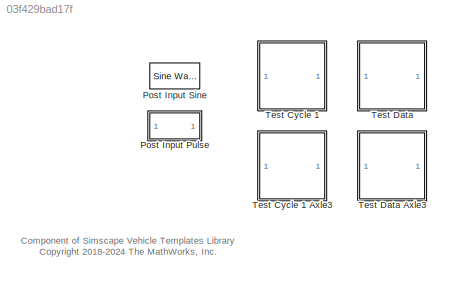
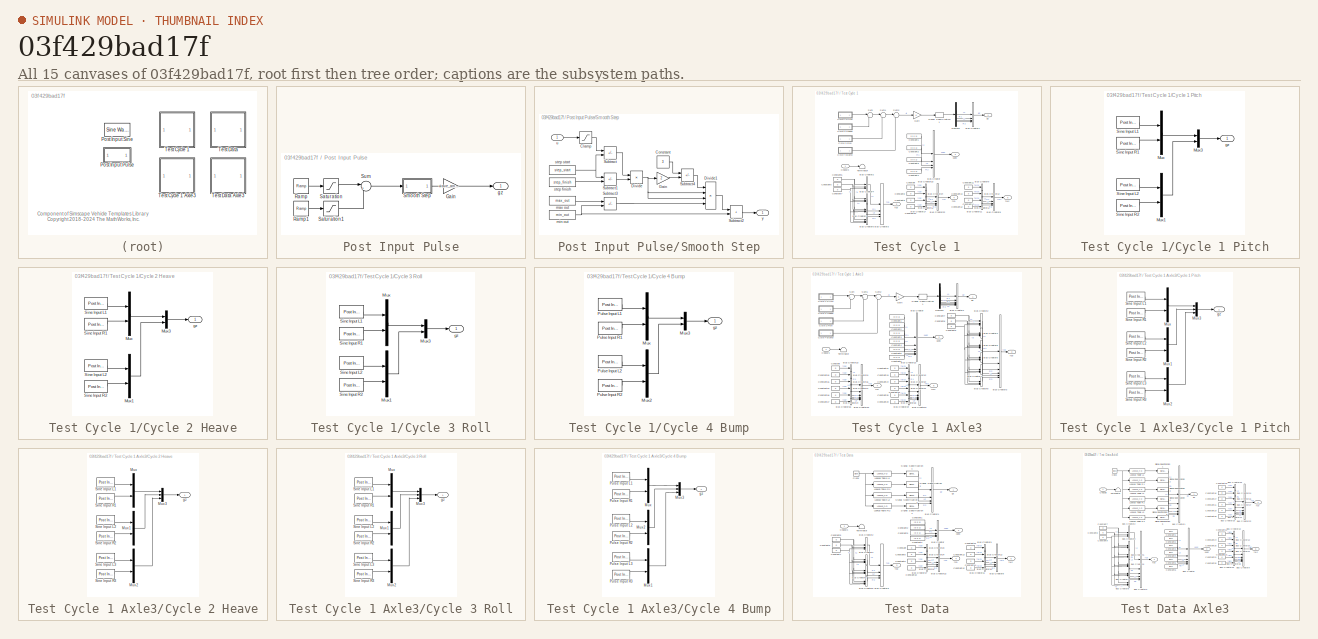
[diagram: thumbnail index - all 15 canvases of the model, root first then tree order]
MODEL slx_03f429bad17f
KIND library
CONFIG AbsTol = auto
CONFIG EnableMultiTasking = off
CONFIG FixedStep = auto
CONFIG MaxStep = auto
CONFIG MinStep = auto
CONFIG RelTol = 1e-3
CONFIG SampleTimeConstraint = Unconstrained
CONFIG SolverName = VariableStepAuto
CONFIG StartTime = 0.0
CONFIG StopTime = 10.0
BLOCK [SubSystem] Post Input Pulse
BLOCK [Gain] Post Input Pulse/Gain
  Gain = wave_amplitude
BLOCK [Reference] Post Input Pulse/Ramp  REF=simulink/Sources/Ramp
  SourceBlock = simulink/Sources/Ramp
  SourceType = Ramp
BLOCK [Reference] Post Input Pulse/Ramp1  REF=simulink/Sources/Ramp
  SourceBlock = simulink/Sources/Ramp
  SourceType = Ramp
BLOCK [Saturate] Post Input Pulse/Saturation
  LowerLimit = 0
  UpperLimit = 1
BLOCK [Saturate] Post Input Pulse/Saturation1
  LowerLimit = -1
  UpperLimit = 0
BLOCK [SubSystem] Post Input Pulse/Smooth Step
BLOCK [Saturate] Post Input Pulse/Smooth Step/Clamp
  LowerLimit = step_start
  NameLocation = top
  UpperLimit = step_finish
BLOCK [Constant] Post Input Pulse/Smooth Step/Constant
  NameLocation = top
  Value = 3
BLOCK [Product] Post Input Pulse/Smooth Step/Divide
  Inputs = */
BLOCK [Product] Post Input Pulse/Smooth Step/Divide1
  Inputs = ****
  NameLocation = top
BLOCK [Gain] Post Input Pulse/Smooth Step/Gain
  Gain = 2
BLOCK [Sum] Post Input Pulse/Smooth Step/Subtract
  IconShape = rectangular
  Inputs = +-
BLOCK [Sum] Post Input Pulse/Smooth Step/Subtract1
  IconShape = rectangular
  Inputs = -+
BLOCK [Sum] Post Input Pulse/Smooth Step/Subtract2
  IconShape = rectangular
BLOCK [Sum] Post Input Pulse/Smooth Step/Subtract3
  IconShape = rectangular
  Inputs = +-
BLOCK [Sum] Post Input Pulse/Smooth Step/Subtract4
  IconShape = rectangular
  Inputs = +-
BLOCK [Constant] Post Input Pulse/Smooth Step/max out
  Value = max_out
BLOCK [Constant] Post Input Pulse/Smooth Step/min out
  Value = min_out
BLOCK [Constant] Post Input Pulse/Smooth Step/step finish
  Value = step_finish
BLOCK [Constant] Post Input Pulse/Smooth Step/step start
  Value = step_start
BLOCK [Inport] Post Input Pulse/Smooth Step/u
  NameLocation = top
BLOCK [Outport] Post Input Pulse/Smooth Step/y
  VectorParamsAs1DForOutWhenUnconnected = off
BLOCK [Sum] Post Input Pulse/Sum
  Inputs = |++
BLOCK [Outport] Post Input Pulse/gz
  VectorParamsAs1DForOutWhenUnconnected = off
BLOCK [Reference] Post Input Sine  REF=dspsrcs4/Sine Wave
  SourceBlock = dspsrcs4/Sine Wave
  SourceType = Sine Wave
BLOCK [SubSystem] Test Cycle 1
  VariantControl = Test_Cycle_1
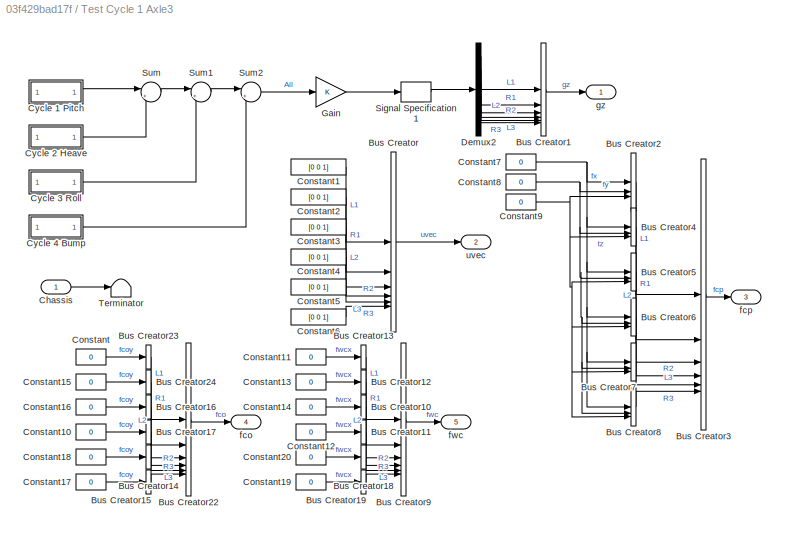
BLOCK [SubSystem] Test Cycle 1 Axle3
BLOCK [BusCreator] Test Cycle 1 Axle3/Bus Creator
  DisplayOption = bar
  InheritFromInputs = on
  Inputs = 6
BLOCK [BusCreator] Test Cycle 1 Axle3/Bus Creator1
  DisplayOption = bar
  InheritFromInputs = on
  Inputs = 6
BLOCK [BusCreator] Test Cycle 1 Axle3/Bus Creator10
  DisplayOption = bar
  InheritFromInputs = on
  Inputs = 1
BLOCK [BusCreator] Test Cycle 1 Axle3/Bus Creator11
  DisplayOption = bar
  InheritFromInputs = on
  Inputs = 1
BLOCK [BusCreator] Test Cycle 1 Axle3/Bus Creator12
  DisplayOption = bar
  InheritFromInputs = on
  Inputs = 1
BLOCK [BusCreator] Test Cycle 1 Axle3/Bus Creator13
  DisplayOption = bar
  InheritFromInputs = on
  Inputs = 1
BLOCK [BusCreator] Test Cycle 1 Axle3/Bus Creator14
  DisplayOption = bar
  InheritFromInputs = on
  Inputs = 1
BLOCK [BusCreator] Test Cycle 1 Axle3/Bus Creator15
  DisplayOption = bar
  InheritFromInputs = on
  Inputs = 1
BLOCK [BusCreator] Test Cycle 1 Axle3/Bus Creator16
  DisplayOption = bar
  InheritFromInputs = on
  Inputs = 1
BLOCK [BusCreator] Test Cycle 1 Axle3/Bus Creator17
  DisplayOption = bar
  InheritFromInputs = on
  Inputs = 1
BLOCK [BusCreator] Test Cycle 1 Axle3/Bus Creator18
  DisplayOption = bar
  InheritFromInputs = on
  Inputs = 1
BLOCK [BusCreator] Test Cycle 1 Axle3/Bus Creator19
  DisplayOption = bar
  InheritFromInputs = on
  Inputs = 1
BLOCK [BusCreator] Test Cycle 1 Axle3/Bus Creator2
  DisplayOption = bar
  InheritFromInputs = on
  Inputs = 3
BLOCK [BusCreator] Test Cycle 1 Axle3/Bus Creator22
  DisplayOption = bar
  InheritFromInputs = on
  Inputs = 6
BLOCK [BusCreator] Test Cycle 1 Axle3/Bus Creator23
  DisplayOption = bar
  InheritFromInputs = on
  Inputs = 1
BLOCK [BusCreator] Test Cycle 1 Axle3/Bus Creator24
  DisplayOption = bar
  InheritFromInputs = on
  Inputs = 1
BLOCK [BusCreator] Test Cycle 1 Axle3/Bus Creator3
  DisplayOption = bar
  InheritFromInputs = on
  Inputs = 6
BLOCK [BusCreator] Test Cycle 1 Axle3/Bus Creator4
  DisplayOption = bar
  InheritFromInputs = on
  Inputs = 3
BLOCK [BusCreator] Test Cycle 1 Axle3/Bus Creator5
  DisplayOption = bar
  InheritFromInputs = on
  Inputs = 3
BLOCK [BusCreator] Test Cycle 1 Axle3/Bus Creator6
  DisplayOption = bar
  InheritFromInputs = on
  Inputs = 3
BLOCK [BusCreator] Test Cycle 1 Axle3/Bus Creator7
  DisplayOption = bar
  InheritFromInputs = on
  Inputs = 3
BLOCK [BusCreator] Test Cycle 1 Axle3/Bus Creator8
  DisplayOption = bar
  InheritFromInputs = on
  Inputs = 3
BLOCK [BusCreator] Test Cycle 1 Axle3/Bus Creator9
  DisplayOption = bar
  InheritFromInputs = on
  Inputs = 6
BLOCK [Inport] Test Cycle 1 Axle3/Chassis
BLOCK [Constant] Test Cycle 1 Axle3/Constant
  Value = 0
BLOCK [Constant] Test Cycle 1 Axle3/Constant1
  Value = [0 0 1]
BLOCK [Constant] Test Cycle 1 Axle3/Constant10
  Value = 0
BLOCK [Constant] Test Cycle 1 Axle3/Constant11
  Value = 0
BLOCK [Constant] Test Cycle 1 Axle3/Constant12
  Value = 0
BLOCK [Constant] Test Cycle 1 Axle3/Constant13
  Value = 0
BLOCK [Constant] Test Cycle 1 Axle3/Constant14
  Value = 0
BLOCK [Constant] Test Cycle 1 Axle3/Constant15
  Value = 0
BLOCK [Constant] Test Cycle 1 Axle3/Constant16
  Value = 0
BLOCK [Constant] Test Cycle 1 Axle3/Constant17
  Value = 0
BLOCK [Constant] Test Cycle 1 Axle3/Constant18
  Value = 0
BLOCK [Constant] Test Cycle 1 Axle3/Constant19
  Value = 0
BLOCK [Constant] Test Cycle 1 Axle3/Constant2
  Value = [0 0 1]
BLOCK [Constant] Test Cycle 1 Axle3/Constant20
  Value = 0
BLOCK [Constant] Test Cycle 1 Axle3/Constant3
  Value = [0 0 1]
BLOCK [Constant] Test Cycle 1 Axle3/Constant4
  Value = [0 0 1]
BLOCK [Constant] Test Cycle 1 Axle3/Constant5
  Value = [0 0 1]
BLOCK [Constant] Test Cycle 1 Axle3/Constant6
  Value = [0 0 1]
BLOCK [Constant] Test Cycle 1 Axle3/Constant7
  Value = 0
BLOCK [Constant] Test Cycle 1 Axle3/Constant8
  Value = 0
BLOCK [Constant] Test Cycle 1 Axle3/Constant9
  Value = 0
BLOCK [SubSystem] Test Cycle 1 Axle3/Cycle 1 Pitch
BLOCK [Mux] Test Cycle 1 Axle3/Cycle 1 Pitch/Mux
  DisplayOption = bar
  Inputs = 2
BLOCK [Mux] Test Cycle 1 Axle3/Cycle 1 Pitch/Mux1
  DisplayOption = bar
  Inputs = 2
BLOCK [Mux] Test Cycle 1 Axle3/Cycle 1 Pitch/Mux2
  DisplayOption = bar
  Inputs = 2
BLOCK [Mux] Test Cycle 1 Axle3/Cycle 1 Pitch/Mux3
  DisplayOption = bar
  Inputs = 3
BLOCK [Reference] Test Cycle 1 Axle3/Cycle 1 Pitch/Sine Input L1  REF=$bdroot/Post Input Sine
  SourceBlock = $bdroot/Post Input Sine
  SourceType = Sine Wave
BLOCK [Reference] Test Cycle 1 Axle3/Cycle 1 Pitch/Sine Input L2  REF=$bdroot/Post Input Sine
  SourceBlock = $bdroot/Post Input Sine
  SourceType = Sine Wave
BLOCK [Reference] Test Cycle 1 Axle3/Cycle 1 Pitch/Sine Input L3  REF=$bdroot/Post Input Sine
  SourceBlock = $bdroot/Post Input Sine
  SourceType = Sine Wave
BLOCK [Reference] Test Cycle 1 Axle3/Cycle 1 Pitch/Sine Input R1  REF=$bdroot/Post Input Sine
  SourceBlock = $bdroot/Post Input Sine
  SourceType = Sine Wave
BLOCK [Reference] Test Cycle 1 Axle3/Cycle 1 Pitch/Sine Input R2  REF=$bdroot/Post Input Sine
  SourceBlock = $bdroot/Post Input Sine
  SourceType = Sine Wave
BLOCK [Reference] Test Cycle 1 Axle3/Cycle 1 Pitch/Sine Input R3  REF=$bdroot/Post Input Sine
  SourceBlock = $bdroot/Post Input Sine
  SourceType = Sine Wave
BLOCK [Outport] Test Cycle 1 Axle3/Cycle 1 Pitch/gz
  VectorParamsAs1DForOutWhenUnconnected = off
BLOCK [SubSystem] Test Cycle 1 Axle3/Cycle 2 Heave
BLOCK [Mux] Test Cycle 1 Axle3/Cycle 2 Heave/Mux
  DisplayOption = bar
  Inputs = 2
BLOCK [Mux] Test Cycle 1 Axle3/Cycle 2 Heave/Mux1
  DisplayOption = bar
  Inputs = 2
BLOCK [Mux] Test Cycle 1 Axle3/Cycle 2 Heave/Mux2
  DisplayOption = bar
  Inputs = 2
BLOCK [Mux] Test Cycle 1 Axle3/Cycle 2 Heave/Mux3
  DisplayOption = bar
  Inputs = 3
BLOCK [Reference] Test Cycle 1 Axle3/Cycle 2 Heave/Sine Input L1  REF=$bdroot/Post Input Sine
  SourceBlock = $bdroot/Post Input Sine
  SourceType = Sine Wave
BLOCK [Reference] Test Cycle 1 Axle3/Cycle 2 Heave/Sine Input L2  REF=$bdroot/Post Input Sine
  SourceBlock = $bdroot/Post Input Sine
  SourceType = Sine Wave
BLOCK [Reference] Test Cycle 1 Axle3/Cycle 2 Heave/Sine Input L3  REF=$bdroot/Post Input Sine
  SourceBlock = $bdroot/Post Input Sine
  SourceType = Sine Wave
BLOCK [Reference] Test Cycle 1 Axle3/Cycle 2 Heave/Sine Input R1  REF=$bdroot/Post Input Sine
  SourceBlock = $bdroot/Post Input Sine
  SourceType = Sine Wave
BLOCK [Reference] Test Cycle 1 Axle3/Cycle 2 Heave/Sine Input R2  REF=$bdroot/Post Input Sine
  SourceBlock = $bdroot/Post Input Sine
  SourceType = Sine Wave
BLOCK [Reference] Test Cycle 1 Axle3/Cycle 2 Heave/Sine Input R3  REF=$bdroot/Post Input Sine
  SourceBlock = $bdroot/Post Input Sine
  SourceType = Sine Wave
BLOCK [Outport] Test Cycle 1 Axle3/Cycle 2 Heave/gz
  VectorParamsAs1DForOutWhenUnconnected = off
BLOCK [SubSystem] Test Cycle 1 Axle3/Cycle 3 Roll
BLOCK [Mux] Test Cycle 1 Axle3/Cycle 3 Roll/Mux
  DisplayOption = bar
  Inputs = 2
BLOCK [Mux] Test Cycle 1 Axle3/Cycle 3 Roll/Mux1
  DisplayOption = bar
  Inputs = 2
BLOCK [Mux] Test Cycle 1 Axle3/Cycle 3 Roll/Mux2
  DisplayOption = bar
  Inputs = 2
BLOCK [Mux] Test Cycle 1 Axle3/Cycle 3 Roll/Mux3
  DisplayOption = bar
  Inputs = 3
BLOCK [Reference] Test Cycle 1 Axle3/Cycle 3 Roll/Sine Input L1  REF=$bdroot/Post Input Sine
  SourceBlock = $bdroot/Post Input Sine
  SourceType = Sine Wave
BLOCK [Reference] Test Cycle 1 Axle3/Cycle 3 Roll/Sine Input L2  REF=$bdroot/Post Input Sine
  SourceBlock = $bdroot/Post Input Sine
  SourceType = Sine Wave
BLOCK [Reference] Test Cycle 1 Axle3/Cycle 3 Roll/Sine Input L3  REF=$bdroot/Post Input Sine
  SourceBlock = $bdroot/Post Input Sine
  SourceType = Sine Wave
BLOCK [Reference] Test Cycle 1 Axle3/Cycle 3 Roll/Sine Input R1  REF=$bdroot/Post Input Sine
  SourceBlock = $bdroot/Post Input Sine
  SourceType = Sine Wave
BLOCK [Reference] Test Cycle 1 Axle3/Cycle 3 Roll/Sine Input R2  REF=$bdroot/Post Input Sine
  SourceBlock = $bdroot/Post Input Sine
  SourceType = Sine Wave
BLOCK [Reference] Test Cycle 1 Axle3/Cycle 3 Roll/Sine Input R3  REF=$bdroot/Post Input Sine
  SourceBlock = $bdroot/Post Input Sine
  SourceType = Sine Wave
BLOCK [Outport] Test Cycle 1 Axle3/Cycle 3 Roll/gz
  VectorParamsAs1DForOutWhenUnconnected = off
BLOCK [SubSystem] Test Cycle 1 Axle3/Cycle 4 Bump
BLOCK [Mux] Test Cycle 1 Axle3/Cycle 4 Bump/Mux
  DisplayOption = bar
  Inputs = 2
BLOCK [Mux] Test Cycle 1 Axle3/Cycle 4 Bump/Mux1
  DisplayOption = bar
  Inputs = 2
BLOCK [Mux] Test Cycle 1 Axle3/Cycle 4 Bump/Mux2
  DisplayOption = bar
  Inputs = 2
BLOCK [Mux] Test Cycle 1 Axle3/Cycle 4 Bump/Mux3
  DisplayOption = bar
  Inputs = 3
BLOCK [Reference] Test Cycle 1 Axle3/Cycle 4 Bump/Pulse Input L1  REF=$bdroot/Post Input Pulse
  SourceBlock = $bdroot/Post Input Pulse
  SourceType = Smooth Pulse
BLOCK [Reference] Test Cycle 1 Axle3/Cycle 4 Bump/Pulse Input L2  REF=$bdroot/Post Input Pulse
  SourceBlock = $bdroot/Post Input Pulse
  SourceType = Smooth Pulse
BLOCK [Reference] Test Cycle 1 Axle3/Cycle 4 Bump/Pulse Input L3  REF=$bdroot/Post Input Pulse
  SourceBlock = $bdroot/Post Input Pulse
  SourceType = Smooth Pulse
BLOCK [Reference] Test Cycle 1 Axle3/Cycle 4 Bump/Pulse Input R1  REF=$bdroot/Post Input Pulse
  SourceBlock = $bdroot/Post Input Pulse
  SourceType = Smooth Pulse
BLOCK [Reference] Test Cycle 1 Axle3/Cycle 4 Bump/Pulse Input R2  REF=$bdroot/Post Input Pulse
  SourceBlock = $bdroot/Post Input Pulse
  SourceType = Smooth Pulse
BLOCK [Reference] Test Cycle 1 Axle3/Cycle 4 Bump/Pulse Input R3  REF=$bdroot/Post Input Pulse
  SourceBlock = $bdroot/Post Input Pulse
  SourceType = Smooth Pulse
BLOCK [Outport] Test Cycle 1 Axle3/Cycle 4 Bump/gz
  VectorParamsAs1DForOutWhenUnconnected = off
BLOCK [Demux] Test Cycle 1 Axle3/Demux2
  Outputs = 6
BLOCK [Gain] Test Cycle 1 Axle3/Gain
BLOCK [SignalSpecification] Test Cycle 1 Axle3/Signal Specification1
  Unit = m
BLOCK [Sum] Test Cycle 1 Axle3/Sum
  Inputs = |++
BLOCK [Sum] Test Cycle 1 Axle3/Sum1
  Inputs = |++
BLOCK [Sum] Test Cycle 1 Axle3/Sum2
  Inputs = |++
BLOCK [Terminator] Test Cycle 1 Axle3/Terminator
BLOCK [Outport] Test Cycle 1 Axle3/fco
  Port = 4
  VectorParamsAs1DForOutWhenUnconnected = off
BLOCK [Outport] Test Cycle 1 Axle3/fcp
  Port = 3
  VectorParamsAs1DForOutWhenUnconnected = off
BLOCK [Outport] Test Cycle 1 Axle3/fwc
  Port = 5
  VectorParamsAs1DForOutWhenUnconnected = off
BLOCK [Outport] Test Cycle 1 Axle3/gz
  VectorParamsAs1DForOutWhenUnconnected = off
BLOCK [Outport] Test Cycle 1 Axle3/uvec
  Port = 2
  VectorParamsAs1DForOutWhenUnconnected = off
BLOCK [BusCreator] Test Cycle 1/Bus Creator
  DisplayOption = bar
  InheritFromInputs = on
  Inputs = 4
BLOCK [BusCreator] Test Cycle 1/Bus Creator1
  DisplayOption = bar
  InheritFromInputs = on
  Inputs = 4
BLOCK [BusCreator] Test Cycle 1/Bus Creator10
  DisplayOption = bar
  InheritFromInputs = on
  Inputs = 1
BLOCK [BusCreator] Test Cycle 1/Bus Creator11
  DisplayOption = bar
  InheritFromInputs = on
  Inputs = 1
BLOCK [BusCreator] Test Cycle 1/Bus Creator12
  DisplayOption = bar
  InheritFromInputs = on
  Inputs = 1
BLOCK [BusCreator] Test Cycle 1/Bus Creator16
  DisplayOption = bar
  InheritFromInputs = on
  Inputs = 1
BLOCK [BusCreator] Test Cycle 1/Bus Creator17
  DisplayOption = bar
  InheritFromInputs = on
  Inputs = 1
BLOCK [BusCreator] Test Cycle 1/Bus Creator2
  DisplayOption = bar
  InheritFromInputs = on
  Inputs = 3
BLOCK [BusCreator] Test Cycle 1/Bus Creator22
  DisplayOption = bar
  InheritFromInputs = on
  Inputs = 4
BLOCK [BusCreator] Test Cycle 1/Bus Creator23
  DisplayOption = bar
  InheritFromInputs = on
  Inputs = 1
BLOCK [BusCreator] Test Cycle 1/Bus Creator24
  DisplayOption = bar
  InheritFromInputs = on
  Inputs = 1
BLOCK [BusCreator] Test Cycle 1/Bus Creator3
  DisplayOption = bar
  InheritFromInputs = on
  Inputs = 4
BLOCK [BusCreator] Test Cycle 1/Bus Creator4
  DisplayOption = bar
  InheritFromInputs = on
  Inputs = 3
BLOCK [BusCreator] Test Cycle 1/Bus Creator5
  DisplayOption = bar
  InheritFromInputs = on
  Inputs = 3
BLOCK [BusCreator] Test Cycle 1/Bus Creator6
  DisplayOption = bar
  InheritFromInputs = on
  Inputs = 3
BLOCK [BusCreator] Test Cycle 1/Bus Creator8
  DisplayOption = bar
  InheritFromInputs = on
  Inputs = 4
BLOCK [BusCreator] Test Cycle 1/Bus Creator9
  DisplayOption = bar
  InheritFromInputs = on
  Inputs = 1
BLOCK [Inport] Test Cycle 1/Chassis
BLOCK [Constant] Test Cycle 1/Constant
  Value = 0
BLOCK [Constant] Test Cycle 1/Constant1
  Value = [0 0 1]
BLOCK [Constant] Test Cycle 1/Constant10
  Value = 0
BLOCK [Constant] Test Cycle 1/Constant11
  Value = 0
BLOCK [Constant] Test Cycle 1/Constant12
  Value = 0
BLOCK [Constant] Test Cycle 1/Constant13
  Value = 0
BLOCK [Constant] Test Cycle 1/Constant14
  Value = 0
BLOCK [Constant] Test Cycle 1/Constant2
  Value = [0 0 1]
BLOCK [Constant] Test Cycle 1/Constant3
  Value = [0 0 1]
BLOCK [Constant] Test Cycle 1/Constant4
  Value = [0 0 1]
BLOCK [Constant] Test Cycle 1/Constant5
  Value = 0
BLOCK [Constant] Test Cycle 1/Constant6
  Value = 0
BLOCK [Constant] Test Cycle 1/Constant7
  Value = 0
BLOCK [Constant] Test Cycle 1/Constant8
  Value = 0
BLOCK [Constant] Test Cycle 1/Constant9
  Value = 0
BLOCK [SubSystem] Test Cycle 1/Cycle 1 Pitch
BLOCK [Mux] Test Cycle 1/Cycle 1 Pitch/Mux
  DisplayOption = bar
  Inputs = 2
BLOCK [Mux] Test Cycle 1/Cycle 1 Pitch/Mux1
  DisplayOption = bar
  Inputs = 2
BLOCK [Mux] Test Cycle 1/Cycle 1 Pitch/Mux3
  DisplayOption = bar
  Inputs = 2
BLOCK [Reference] Test Cycle 1/Cycle 1 Pitch/Sine Input L1  REF=$bdroot/Post Input Sine
  SourceBlock = $bdroot/Post Input Sine
  SourceType = Sine Wave
BLOCK [Reference] Test Cycle 1/Cycle 1 Pitch/Sine Input L2  REF=$bdroot/Post Input Sine
  SourceBlock = $bdroot/Post Input Sine
  SourceType = Sine Wave
BLOCK [Reference] Test Cycle 1/Cycle 1 Pitch/Sine Input R1  REF=$bdroot/Post Input Sine
  SourceBlock = $bdroot/Post Input Sine
  SourceType = Sine Wave
BLOCK [Reference] Test Cycle 1/Cycle 1 Pitch/Sine Input R2  REF=$bdroot/Post Input Sine
  SourceBlock = $bdroot/Post Input Sine
  SourceType = Sine Wave
BLOCK [Outport] Test Cycle 1/Cycle 1 Pitch/gz
  VectorParamsAs1DForOutWhenUnconnected = off
BLOCK [SubSystem] Test Cycle 1/Cycle 2 Heave
BLOCK [Mux] Test Cycle 1/Cycle 2 Heave/Mux
  DisplayOption = bar
  Inputs = 2
BLOCK [Mux] Test Cycle 1/Cycle 2 Heave/Mux1
  DisplayOption = bar
  Inputs = 2
BLOCK [Mux] Test Cycle 1/Cycle 2 Heave/Mux3
  DisplayOption = bar
  Inputs = 2
BLOCK [Reference] Test Cycle 1/Cycle 2 Heave/Sine Input L1  REF=$bdroot/Post Input Sine
  SourceBlock = $bdroot/Post Input Sine
  SourceType = Sine Wave
BLOCK [Reference] Test Cycle 1/Cycle 2 Heave/Sine Input L2  REF=$bdroot/Post Input Sine
  SourceBlock = $bdroot/Post Input Sine
  SourceType = Sine Wave
BLOCK [Reference] Test Cycle 1/Cycle 2 Heave/Sine Input R1  REF=$bdroot/Post Input Sine
  SourceBlock = $bdroot/Post Input Sine
  SourceType = Sine Wave
BLOCK [Reference] Test Cycle 1/Cycle 2 Heave/Sine Input R2  REF=$bdroot/Post Input Sine
  SourceBlock = $bdroot/Post Input Sine
  SourceType = Sine Wave
BLOCK [Outport] Test Cycle 1/Cycle 2 Heave/gz
  VectorParamsAs1DForOutWhenUnconnected = off
BLOCK [SubSystem] Test Cycle 1/Cycle 3 Roll
BLOCK [Mux] Test Cycle 1/Cycle 3 Roll/Mux
  DisplayOption = bar
  Inputs = 2
BLOCK [Mux] Test Cycle 1/Cycle 3 Roll/Mux1
  DisplayOption = bar
  Inputs = 2
BLOCK [Mux] Test Cycle 1/Cycle 3 Roll/Mux3
  DisplayOption = bar
  Inputs = 2
BLOCK [Reference] Test Cycle 1/Cycle 3 Roll/Sine Input L1  REF=$bdroot/Post Input Sine
  SourceBlock = $bdroot/Post Input Sine
  SourceType = Sine Wave
BLOCK [Reference] Test Cycle 1/Cycle 3 Roll/Sine Input L2  REF=$bdroot/Post Input Sine
  SourceBlock = $bdroot/Post Input Sine
  SourceType = Sine Wave
BLOCK [Reference] Test Cycle 1/Cycle 3 Roll/Sine Input R1  REF=$bdroot/Post Input Sine
  SourceBlock = $bdroot/Post Input Sine
  SourceType = Sine Wave
BLOCK [Reference] Test Cycle 1/Cycle 3 Roll/Sine Input R2  REF=$bdroot/Post Input Sine
  SourceBlock = $bdroot/Post Input Sine
  SourceType = Sine Wave
BLOCK [Outport] Test Cycle 1/Cycle 3 Roll/gz
  VectorParamsAs1DForOutWhenUnconnected = off
BLOCK [SubSystem] Test Cycle 1/Cycle 4 Bump
BLOCK [Mux] Test Cycle 1/Cycle 4 Bump/Mux
  DisplayOption = bar
  Inputs = 2
BLOCK [Mux] Test Cycle 1/Cycle 4 Bump/Mux2
  DisplayOption = bar
  Inputs = 2
BLOCK [Mux] Test Cycle 1/Cycle 4 Bump/Mux3
  DisplayOption = bar
  Inputs = 2
BLOCK [Reference] Test Cycle 1/Cycle 4 Bump/Pulse Input L1  REF=$bdroot/Post Input Pulse
  SourceBlock = $bdroot/Post Input Pulse
  SourceType = Smooth Pulse
BLOCK [Reference] Test Cycle 1/Cycle 4 Bump/Pulse Input L2  REF=$bdroot/Post Input Pulse
  SourceBlock = $bdroot/Post Input Pulse
  SourceType = Smooth Pulse
BLOCK [Reference] Test Cycle 1/Cycle 4 Bump/Pulse Input R1  REF=$bdroot/Post Input Pulse
  SourceBlock = $bdroot/Post Input Pulse
  SourceType = Smooth Pulse
BLOCK [Reference] Test Cycle 1/Cycle 4 Bump/Pulse Input R2  REF=$bdroot/Post Input Pulse
  SourceBlock = $bdroot/Post Input Pulse
  SourceType = Smooth Pulse
BLOCK [Outport] Test Cycle 1/Cycle 4 Bump/gz
  VectorParamsAs1DForOutWhenUnconnected = off
BLOCK [Demux] Test Cycle 1/Demux2
BLOCK [Gain] Test Cycle 1/Gain
BLOCK [SignalSpecification] Test Cycle 1/Signal Specification1
  Unit = m
BLOCK [Sum] Test Cycle 1/Sum
  Inputs = |++
BLOCK [Sum] Test Cycle 1/Sum1
  Inputs = |++
BLOCK [Sum] Test Cycle 1/Sum2
  Inputs = |++
BLOCK [Terminator] Test Cycle 1/Terminator
BLOCK [Outport] Test Cycle 1/fco
  Port = 4
  VectorParamsAs1DForOutWhenUnconnected = off
BLOCK [Outport] Test Cycle 1/fcp
  Port = 3
  VectorParamsAs1DForOutWhenUnconnected = off
BLOCK [Outport] Test Cycle 1/fwc
  Port = 5
  VectorParamsAs1DForOutWhenUnconnected = off
BLOCK [Outport] Test Cycle 1/gz
  VectorParamsAs1DForOutWhenUnconnected = off
BLOCK [Outport] Test Cycle 1/uvec
  Port = 2
  VectorParamsAs1DForOutWhenUnconnected = off
BLOCK [SubSystem] Test Data
  VariantControl = Test_Cycle_1
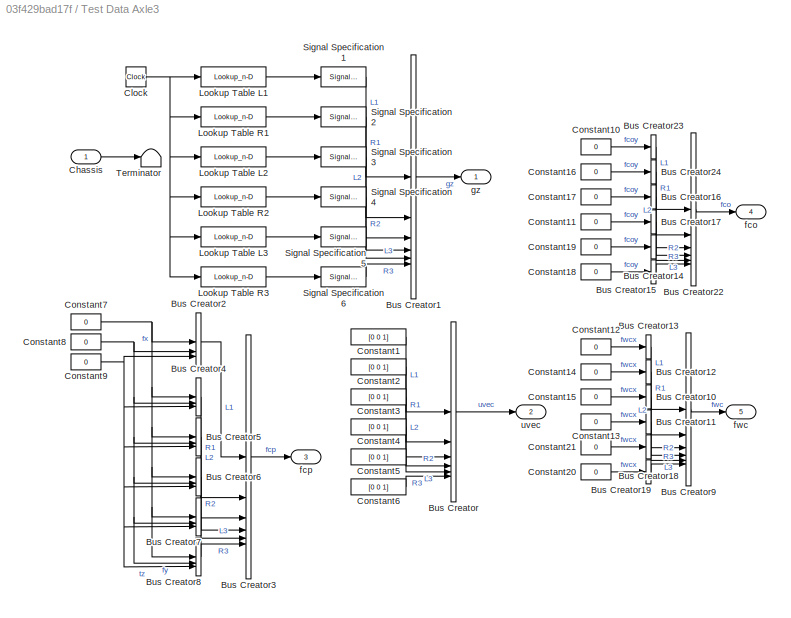
BLOCK [SubSystem] Test Data Axle3
  VariantControl = Test_Cycle_1
BLOCK [BusCreator] Test Data Axle3/Bus Creator
  DisplayOption = bar
  InheritFromInputs = on
  Inputs = 6
BLOCK [BusCreator] Test Data Axle3/Bus Creator1
  DisplayOption = bar
  InheritFromInputs = on
  Inputs = 6
BLOCK [BusCreator] Test Data Axle3/Bus Creator10
  DisplayOption = bar
  InheritFromInputs = on
  Inputs = 1
BLOCK [BusCreator] Test Data Axle3/Bus Creator11
  DisplayOption = bar
  InheritFromInputs = on
  Inputs = 1
BLOCK [BusCreator] Test Data Axle3/Bus Creator12
  DisplayOption = bar
  InheritFromInputs = on
  Inputs = 1
BLOCK [BusCreator] Test Data Axle3/Bus Creator13
  DisplayOption = bar
  InheritFromInputs = on
  Inputs = 1
BLOCK [BusCreator] Test Data Axle3/Bus Creator14
  DisplayOption = bar
  InheritFromInputs = on
  Inputs = 1
BLOCK [BusCreator] Test Data Axle3/Bus Creator15
  DisplayOption = bar
  InheritFromInputs = on
  Inputs = 1
BLOCK [BusCreator] Test Data Axle3/Bus Creator16
  DisplayOption = bar
  InheritFromInputs = on
  Inputs = 1
BLOCK [BusCreator] Test Data Axle3/Bus Creator17
  DisplayOption = bar
  InheritFromInputs = on
  Inputs = 1
BLOCK [BusCreator] Test Data Axle3/Bus Creator18
  DisplayOption = bar
  InheritFromInputs = on
  Inputs = 1
BLOCK [BusCreator] Test Data Axle3/Bus Creator19
  DisplayOption = bar
  InheritFromInputs = on
  Inputs = 1
BLOCK [BusCreator] Test Data Axle3/Bus Creator2
  DisplayOption = bar
  InheritFromInputs = on
  Inputs = 3
BLOCK [BusCreator] Test Data Axle3/Bus Creator22
  DisplayOption = bar
  InheritFromInputs = on
  Inputs = 6
BLOCK [BusCreator] Test Data Axle3/Bus Creator23
  DisplayOption = bar
  InheritFromInputs = on
  Inputs = 1
BLOCK [BusCreator] Test Data Axle3/Bus Creator24
  DisplayOption = bar
  InheritFromInputs = on
  Inputs = 1
BLOCK [BusCreator] Test Data Axle3/Bus Creator3
  DisplayOption = bar
  InheritFromInputs = on
  Inputs = 6
BLOCK [BusCreator] Test Data Axle3/Bus Creator4
  DisplayOption = bar
  InheritFromInputs = on
  Inputs = 3
BLOCK [BusCreator] Test Data Axle3/Bus Creator5
  DisplayOption = bar
  InheritFromInputs = on
  Inputs = 3
BLOCK [BusCreator] Test Data Axle3/Bus Creator6
  DisplayOption = bar
  InheritFromInputs = on
  Inputs = 3
BLOCK [BusCreator] Test Data Axle3/Bus Creator7
  DisplayOption = bar
  InheritFromInputs = on
  Inputs = 3
BLOCK [BusCreator] Test Data Axle3/Bus Creator8
  DisplayOption = bar
  InheritFromInputs = on
  Inputs = 3
BLOCK [BusCreator] Test Data Axle3/Bus Creator9
  DisplayOption = bar
  InheritFromInputs = on
  Inputs = 6
BLOCK [Inport] Test Data Axle3/Chassis
BLOCK [Clock] Test Data Axle3/Clock
BLOCK [Constant] Test Data Axle3/Constant1
  Value = [0 0 1]
BLOCK [Constant] Test Data Axle3/Constant10
  Value = 0
BLOCK [Constant] Test Data Axle3/Constant11
  Value = 0
BLOCK [Constant] Test Data Axle3/Constant12
  Value = 0
BLOCK [Constant] Test Data Axle3/Constant13
  Value = 0
BLOCK [Constant] Test Data Axle3/Constant14
  Value = 0
BLOCK [Constant] Test Data Axle3/Constant15
  Value = 0
BLOCK [Constant] Test Data Axle3/Constant16
  Value = 0
BLOCK [Constant] Test Data Axle3/Constant17
  Value = 0
BLOCK [Constant] Test Data Axle3/Constant18
  Value = 0
BLOCK [Constant] Test Data Axle3/Constant19
  Value = 0
BLOCK [Constant] Test Data Axle3/Constant2
  Value = [0 0 1]
BLOCK [Constant] Test Data Axle3/Constant20
  Value = 0
BLOCK [Constant] Test Data Axle3/Constant21
  Value = 0
BLOCK [Constant] Test Data Axle3/Constant3
  Value = [0 0 1]
BLOCK [Constant] Test Data Axle3/Constant4
  Value = [0 0 1]
BLOCK [Constant] Test Data Axle3/Constant5
  Value = [0 0 1]
BLOCK [Constant] Test Data Axle3/Constant6
  Value = [0 0 1]
BLOCK [Constant] Test Data Axle3/Constant7
  Value = 0
BLOCK [Constant] Test Data Axle3/Constant8
  Value = 0
BLOCK [Constant] Test Data Axle3/Constant9
  Value = 0
BLOCK [Lookup_n-D] Test Data Axle3/Lookup Table L1
  BreakpointsForDimension1 = brkpts_postL1
  InputPortMap = u0
  InternalRulePriority = Speed
  NumberOfTableDimensions = 1
  RndMeth = Simplest
  Table = table_postL1
BLOCK [Lookup_n-D] Test Data Axle3/Lookup Table L2
  BreakpointsForDimension1 = brkpts_postL2
  InputPortMap = u0
  InternalRulePriority = Speed
  InterpMethod = Cubic spline
  NumberOfTableDimensions = 1
  RndMeth = Simplest
  Table = table_postL2
BLOCK [Lookup_n-D] Test Data Axle3/Lookup Table L3
  BreakpointsForDimension1 = brkpts_postL3
  InputPortMap = u0
  InternalRulePriority = Speed
  InterpMethod = Cubic spline
  NumberOfTableDimensions = 1
  RndMeth = Simplest
  Table = table_postL3
BLOCK [Lookup_n-D] Test Data Axle3/Lookup Table R1
  BreakpointsForDimension1 = brkpts_postR1
  InputPortMap = u0
  InternalRulePriority = Speed
  InterpMethod = Cubic spline
  NumberOfTableDimensions = 1
  RndMeth = Simplest
  Table = table_postR1
BLOCK [Lookup_n-D] Test Data Axle3/Lookup Table R2
  BreakpointsForDimension1 = brkpts_postR2
  InputPortMap = u0
  InternalRulePriority = Speed
  InterpMethod = Cubic spline
  NumberOfTableDimensions = 1
  RndMeth = Simplest
  Table = table_postR2
BLOCK [Lookup_n-D] Test Data Axle3/Lookup Table R3
  BreakpointsForDimension1 = brkpts_postR3
  InputPortMap = u0
  InternalRulePriority = Speed
  InterpMethod = Cubic spline
  NumberOfTableDimensions = 1
  RndMeth = Simplest
  Table = table_postR3
BLOCK [SignalSpecification] Test Data Axle3/Signal Specification1
  Unit = m
BLOCK [SignalSpecification] Test Data Axle3/Signal Specification2
  Unit = m
BLOCK [SignalSpecification] Test Data Axle3/Signal Specification3
  Unit = m
BLOCK [SignalSpecification] Test Data Axle3/Signal Specification4
  Unit = m
BLOCK [SignalSpecification] Test Data Axle3/Signal Specification5
  Unit = m
BLOCK [SignalSpecification] Test Data Axle3/Signal Specification6
  Unit = m
BLOCK [Terminator] Test Data Axle3/Terminator
BLOCK [Outport] Test Data Axle3/fco
  Port = 4
  VectorParamsAs1DForOutWhenUnconnected = off
BLOCK [Outport] Test Data Axle3/fcp
  Port = 3
  VectorParamsAs1DForOutWhenUnconnected = off
BLOCK [Outport] Test Data Axle3/fwc
  Port = 5
  VectorParamsAs1DForOutWhenUnconnected = off
BLOCK [Outport] Test Data Axle3/gz
  VectorParamsAs1DForOutWhenUnconnected = off
BLOCK [Outport] Test Data Axle3/uvec
  Port = 2
  VectorParamsAs1DForOutWhenUnconnected = off
BLOCK [BusCreator] Test Data/Bus Creator
  DisplayOption = bar
  InheritFromInputs = on
  Inputs = 4
BLOCK [BusCreator] Test Data/Bus Creator1
  DisplayOption = bar
  InheritFromInputs = on
  Inputs = 4
BLOCK [BusCreator] Test Data/Bus Creator10
  DisplayOption = bar
  InheritFromInputs = on
  Inputs = 1
BLOCK [BusCreator] Test Data/Bus Creator11
  DisplayOption = bar
  InheritFromInputs = on
  Inputs = 1
BLOCK [BusCreator] Test Data/Bus Creator12
  DisplayOption = bar
  InheritFromInputs = on
  Inputs = 1
BLOCK [BusCreator] Test Data/Bus Creator16
  DisplayOption = bar
  InheritFromInputs = on
  Inputs = 1
BLOCK [BusCreator] Test Data/Bus Creator17
  DisplayOption = bar
  InheritFromInputs = on
  Inputs = 1
BLOCK [BusCreator] Test Data/Bus Creator2
  DisplayOption = bar
  InheritFromInputs = on
  Inputs = 3
BLOCK [BusCreator] Test Data/Bus Creator22
  DisplayOption = bar
  InheritFromInputs = on
  Inputs = 4
BLOCK [BusCreator] Test Data/Bus Creator23
  DisplayOption = bar
  InheritFromInputs = on
  Inputs = 1
BLOCK [BusCreator] Test Data/Bus Creator24
  DisplayOption = bar
  InheritFromInputs = on
  Inputs = 1
BLOCK [BusCreator] Test Data/Bus Creator3
  DisplayOption = bar
  InheritFromInputs = on
  Inputs = 4
BLOCK [BusCreator] Test Data/Bus Creator4
  DisplayOption = bar
  InheritFromInputs = on
  Inputs = 3
BLOCK [BusCreator] Test Data/Bus Creator5
  DisplayOption = bar
  InheritFromInputs = on
  Inputs = 3
BLOCK [BusCreator] Test Data/Bus Creator6
  DisplayOption = bar
  InheritFromInputs = on
  Inputs = 3
BLOCK [BusCreator] Test Data/Bus Creator8
  DisplayOption = bar
  InheritFromInputs = on
  Inputs = 4
BLOCK [BusCreator] Test Data/Bus Creator9
  DisplayOption = bar
  InheritFromInputs = on
  Inputs = 1
BLOCK [Inport] Test Data/Chassis
BLOCK [Clock] Test Data/Clock
BLOCK [Constant] Test Data/Constant
  Value = 0
BLOCK [Constant] Test Data/Constant1
  Value = [0 0 1]
BLOCK [Constant] Test Data/Constant10
  Value = 0
BLOCK [Constant] Test Data/Constant11
  Value = 0
BLOCK [Constant] Test Data/Constant12
  Value = 0
BLOCK [Constant] Test Data/Constant13
  Value = 0
BLOCK [Constant] Test Data/Constant14
  Value = 0
BLOCK [Constant] Test Data/Constant2
  Value = [0 0 1]
BLOCK [Constant] Test Data/Constant3
  Value = [0 0 1]
BLOCK [Constant] Test Data/Constant4
  Value = [0 0 1]
BLOCK [Constant] Test Data/Constant5
  Value = 0
BLOCK [Constant] Test Data/Constant6
  Value = 0
BLOCK [Constant] Test Data/Constant7
  Value = 0
BLOCK [Constant] Test Data/Constant8
  Value = 0
BLOCK [Constant] Test Data/Constant9
  Value = 0
BLOCK [Lookup_n-D] Test Data/Lookup Table L1
  BreakpointsForDimension1 = brkpts_postL1
  InputPortMap = u0
  InternalRulePriority = Speed
  NumberOfTableDimensions = 1
  RndMeth = Simplest
  Table = table_postL1
BLOCK [Lookup_n-D] Test Data/Lookup Table L2
  BreakpointsForDimension1 = brkpts_postL2
  InputPortMap = u0
  InternalRulePriority = Speed
  InterpMethod = Cubic spline
  NumberOfTableDimensions = 1
  RndMeth = Simplest
  Table = table_postL2
BLOCK [Lookup_n-D] Test Data/Lookup Table R1
  BreakpointsForDimension1 = brkpts_postR1
  InputPortMap = u0
  InternalRulePriority = Speed
  InterpMethod = Cubic spline
  NumberOfTableDimensions = 1
  RndMeth = Simplest
  Table = table_postR1
BLOCK [Lookup_n-D] Test Data/Lookup Table R2
  BreakpointsForDimension1 = brkpts_postR2
  InputPortMap = u0
  InternalRulePriority = Speed
  InterpMethod = Cubic spline
  NumberOfTableDimensions = 1
  RndMeth = Simplest
  Table = table_postR2
BLOCK [SignalSpecification] Test Data/Signal Specification1
  Unit = m
BLOCK [SignalSpecification] Test Data/Signal Specification2
  Unit = m
BLOCK [SignalSpecification] Test Data/Signal Specification3
  Unit = m
BLOCK [SignalSpecification] Test Data/Signal Specification4
  Unit = m
BLOCK [Terminator] Test Data/Terminator
BLOCK [Outport] Test Data/fco
  Port = 4
  VectorParamsAs1DForOutWhenUnconnected = off
BLOCK [Outport] Test Data/fcp
  Port = 3
  VectorParamsAs1DForOutWhenUnconnected = off
BLOCK [Outport] Test Data/fwc
  Port = 5
  VectorParamsAs1DForOutWhenUnconnected = off
BLOCK [Outport] Test Data/gz
  VectorParamsAs1DForOutWhenUnconnected = off
BLOCK [Outport] Test Data/uvec
  Port = 2
  VectorParamsAs1DForOutWhenUnconnected = off
ANNOTATION (root): Component of Simscape Vehicle Templates Library <copyright redacted>
LINE Post Input Pulse/Gain:1 -> Post Input Pulse/gz:1
LINE Post Input Pulse/Ramp1:1 -> Post Input Pulse/Saturation1:1
LINE Post Input Pulse/Ramp:1 -> Post Input Pulse/Saturation:1
LINE Post Input Pulse/Saturation1:1 -> Post Input Pulse/Sum:2
LINE Post Input Pulse/Saturation:1 -> Post Input Pulse/Sum:1
LINE Post Input Pulse/Smooth Step/Clamp:1 -> Post Input Pulse/Smooth Step/Subtract:1
LINE Post Input Pulse/Smooth Step/Constant:1 -> Post Input Pulse/Smooth Step/Subtract4:1
LINE Post Input Pulse/Smooth Step/Divide1:1 -> Post Input Pulse/Smooth Step/Subtract2:1
NET Post Input Pulse/Smooth Step/Divide:1 -> Post Input Pulse/Smooth Step/Divide1:2, Post Input Pulse/Smooth Step/Divide1:3, Post Input Pulse/Smooth Step/Gain:1
LINE Post Input Pulse/Smooth Step/Gain:1 -> Post Input Pulse/Smooth Step/Subtract4:2
LINE Post Input Pulse/Smooth Step/Subtract1:1 -> Post Input Pulse/Smooth Step/Divide:2
LINE Post Input Pulse/Smooth Step/Subtract2:1 -> Post Input Pulse/Smooth Step/y:1
LINE Post Input Pulse/Smooth Step/Subtract3:1 -> Post Input Pulse/Smooth Step/Divide1:4
LINE Post Input Pulse/Smooth Step/Subtract4:1 -> Post Input Pulse/Smooth Step/Divide1:1
LINE Post Input Pulse/Smooth Step/Subtract:1 -> Post Input Pulse/Smooth Step/Divide:1
LINE Post Input Pulse/Smooth Step/max out:1 -> Post Input Pulse/Smooth Step/Subtract3:1
NET Post Input Pulse/Smooth Step/min out:1 -> Post Input Pulse/Smooth Step/Subtract2:2, Post Input Pulse/Smooth Step/Subtract3:2
LINE Post Input Pulse/Smooth Step/step finish:1 -> Post Input Pulse/Smooth Step/Subtract1:2
NET Post Input Pulse/Smooth Step/step start:1 -> Post Input Pulse/Smooth Step/Subtract1:1, Post Input Pulse/Smooth Step/Subtract:2
LINE Post Input Pulse/Smooth Step/u:1 -> Post Input Pulse/Smooth Step/Clamp:1
LINE Post Input Pulse/Smooth Step:1 -> Post Input Pulse/Gain:1
LINE Post Input Pulse/Sum:1 -> Post Input Pulse/Smooth Step:1
LINE Test Cycle 1 Axle3/Bus Creator10:1 -> Test Cycle 1 Axle3/Bus Creator9:3
LINE Test Cycle 1 Axle3/Bus Creator11:1 -> Test Cycle 1 Axle3/Bus Creator9:4
LINE Test Cycle 1 Axle3/Bus Creator12:1 -> Test Cycle 1 Axle3/Bus Creator9:2
LINE Test Cycle 1 Axle3/Bus Creator13:1 -> Test Cycle 1 Axle3/Bus Creator9:1
LINE Test Cycle 1 Axle3/Bus Creator14:1 -> Test Cycle 1 Axle3/Bus Creator22:5
LINE Test Cycle 1 Axle3/Bus Creator15:1 -> Test Cycle 1 Axle3/Bus Creator22:6
LINE Test Cycle 1 Axle3/Bus Creator16:1 -> Test Cycle 1 Axle3/Bus Creator22:3
LINE Test Cycle 1 Axle3/Bus Creator17:1 -> Test Cycle 1 Axle3/Bus Creator22:4
LINE Test Cycle 1 Axle3/Bus Creator18:1 -> Test Cycle 1 Axle3/Bus Creator9:5
LINE Test Cycle 1 Axle3/Bus Creator19:1 -> Test Cycle 1 Axle3/Bus Creator9:6
LINE Test Cycle 1 Axle3/Bus Creator1:1 -> Test Cycle 1 Axle3/gz:1
LINE Test Cycle 1 Axle3/Bus Creator22:1 -> Test Cycle 1 Axle3/fco:1
LINE Test Cycle 1 Axle3/Bus Creator23:1 -> Test Cycle 1 Axle3/Bus Creator22:1
LINE Test Cycle 1 Axle3/Bus Creator24:1 -> Test Cycle 1 Axle3/Bus Creator22:2
LINE Test Cycle 1 Axle3/Bus Creator2:1 -> Test Cycle 1 Axle3/Bus Creator3:1
LINE Test Cycle 1 Axle3/Bus Creator3:1 -> Test Cycle 1 Axle3/fcp:1
LINE Test Cycle 1 Axle3/Bus Creator4:1 -> Test Cycle 1 Axle3/Bus Creator3:2
LINE Test Cycle 1 Axle3/Bus Creator5:1 -> Test Cycle 1 Axle3/Bus Creator3:3
LINE Test Cycle 1 Axle3/Bus Creator6:1 -> Test Cycle 1 Axle3/Bus Creator3:4
LINE Test Cycle 1 Axle3/Bus Creator7:1 -> Test Cycle 1 Axle3/Bus Creator3:5
LINE Test Cycle 1 Axle3/Bus Creator8:1 -> Test Cycle 1 Axle3/Bus Creator3:6
LINE Test Cycle 1 Axle3/Bus Creator9:1 -> Test Cycle 1 Axle3/fwc:1
LINE Test Cycle 1 Axle3/Bus Creator:1 -> Test Cycle 1 Axle3/uvec:1
LINE Test Cycle 1 Axle3/Chassis:1 -> Test Cycle 1 Axle3/Terminator:1
LINE Test Cycle 1 Axle3/Constant10:1 -> Test Cycle 1 Axle3/Bus Creator17:1
LINE Test Cycle 1 Axle3/Constant11:1 -> Test Cycle 1 Axle3/Bus Creator13:1
LINE Test Cycle 1 Axle3/Constant12:1 -> Test Cycle 1 Axle3/Bus Creator11:1
LINE Test Cycle 1 Axle3/Constant13:1 -> Test Cycle 1 Axle3/Bus Creator12:1
LINE Test Cycle 1 Axle3/Constant14:1 -> Test Cycle 1 Axle3/Bus Creator10:1
LINE Test Cycle 1 Axle3/Constant15:1 -> Test Cycle 1 Axle3/Bus Creator24:1
LINE Test Cycle 1 Axle3/Constant16:1 -> Test Cycle 1 Axle3/Bus Creator16:1
LINE Test Cycle 1 Axle3/Constant17:1 -> Test Cycle 1 Axle3/Bus Creator15:1
LINE Test Cycle 1 Axle3/Constant18:1 -> Test Cycle 1 Axle3/Bus Creator14:1
LINE Test Cycle 1 Axle3/Constant19:1 -> Test Cycle 1 Axle3/Bus Creator19:1
LINE Test Cycle 1 Axle3/Constant1:1 -> Test Cycle 1 Axle3/Bus Creator:1
LINE Test Cycle 1 Axle3/Constant20:1 -> Test Cycle 1 Axle3/Bus Creator18:1
LINE Test Cycle 1 Axle3/Constant2:1 -> Test Cycle 1 Axle3/Bus Creator:2
LINE Test Cycle 1 Axle3/Constant3:1 -> Test Cycle 1 Axle3/Bus Creator:3
LINE Test Cycle 1 Axle3/Constant4:1 -> Test Cycle 1 Axle3/Bus Creator:4
LINE Test Cycle 1 Axle3/Constant5:1 -> Test Cycle 1 Axle3/Bus Creator:5
LINE Test Cycle 1 Axle3/Constant6:1 -> Test Cycle 1 Axle3/Bus Creator:6
NET Test Cycle 1 Axle3/Constant7:1 -> Test Cycle 1 Axle3/Bus Creator2:1, Test Cycle 1 Axle3/Bus Creator4:1, Test Cycle 1 Axle3/Bus Creator5:1, Test Cycle 1 Axle3/Bus Creator6:1, Test Cycle 1 Axle3/Bus Creator7:1, Test Cycle 1 Axle3/Bus Creator8:1
NET Test Cycle 1 Axle3/Constant8:1 -> Test Cycle 1 Axle3/Bus Creator2:2, Test Cycle 1 Axle3/Bus Creator4:2, Test Cycle 1 Axle3/Bus Creator5:2, Test Cycle 1 Axle3/Bus Creator6:2, Test Cycle 1 Axle3/Bus Creator7:2, Test Cycle 1 Axle3/Bus Creator8:2
NET Test Cycle 1 Axle3/Constant9:1 -> Test Cycle 1 Axle3/Bus Creator2:3, Test Cycle 1 Axle3/Bus Creator4:3, Test Cycle 1 Axle3/Bus Creator5:3, Test Cycle 1 Axle3/Bus Creator6:3, Test Cycle 1 Axle3/Bus Creator7:3, Test Cycle 1 Axle3/Bus Creator8:3
LINE Test Cycle 1 Axle3/Constant:1 -> Test Cycle 1 Axle3/Bus Creator23:1
LINE Test Cycle 1 Axle3/Cycle 1 Pitch/Mux1:1 -> Test Cycle 1 Axle3/Cycle 1 Pitch/Mux3:2
LINE Test Cycle 1 Axle3/Cycle 1 Pitch/Mux2:1 -> Test Cycle 1 Axle3/Cycle 1 Pitch/Mux3:3
LINE Test Cycle 1 Axle3/Cycle 1 Pitch/Mux3:1 -> Test Cycle 1 Axle3/Cycle 1 Pitch/gz:1
LINE Test Cycle 1 Axle3/Cycle 1 Pitch/Mux:1 -> Test Cycle 1 Axle3/Cycle 1 Pitch/Mux3:1
LINE Test Cycle 1 Axle3/Cycle 1 Pitch/Sine Input L1:1 -> Test Cycle 1 Axle3/Cycle 1 Pitch/Mux:1
LINE Test Cycle 1 Axle3/Cycle 1 Pitch/Sine Input L2:1 -> Test Cycle 1 Axle3/Cycle 1 Pitch/Mux1:1
LINE Test Cycle 1 Axle3/Cycle 1 Pitch/Sine Input L3:1 -> Test Cycle 1 Axle3/Cycle 1 Pitch/Mux2:1
LINE Test Cycle 1 Axle3/Cycle 1 Pitch/Sine Input R1:1 -> Test Cycle 1 Axle3/Cycle 1 Pitch/Mux:2
LINE Test Cycle 1 Axle3/Cycle 1 Pitch/Sine Input R2:1 -> Test Cycle 1 Axle3/Cycle 1 Pitch/Mux1:2
LINE Test Cycle 1 Axle3/Cycle 1 Pitch/Sine Input R3:1 -> Test Cycle 1 Axle3/Cycle 1 Pitch/Mux2:2
LINE Test Cycle 1 Axle3/Cycle 1 Pitch:1 -> Test Cycle 1 Axle3/Sum:1
LINE Test Cycle 1 Axle3/Cycle 2 Heave/Mux1:1 -> Test Cycle 1 Axle3/Cycle 2 Heave/Mux3:2
LINE Test Cycle 1 Axle3/Cycle 2 Heave/Mux2:1 -> Test Cycle 1 Axle3/Cycle 2 Heave/Mux3:3
LINE Test Cycle 1 Axle3/Cycle 2 Heave/Mux3:1 -> Test Cycle 1 Axle3/Cycle 2 Heave/gz:1
LINE Test Cycle 1 Axle3/Cycle 2 Heave/Mux:1 -> Test Cycle 1 Axle3/Cycle 2 Heave/Mux3:1
LINE Test Cycle 1 Axle3/Cycle 2 Heave/Sine Input L1:1 -> Test Cycle 1 Axle3/Cycle 2 Heave/Mux:1
LINE Test Cycle 1 Axle3/Cycle 2 Heave/Sine Input L2:1 -> Test Cycle 1 Axle3/Cycle 2 Heave/Mux1:1
LINE Test Cycle 1 Axle3/Cycle 2 Heave/Sine Input L3:1 -> Test Cycle 1 Axle3/Cycle 2 Heave/Mux2:1
LINE Test Cycle 1 Axle3/Cycle 2 Heave/Sine Input R1:1 -> Test Cycle 1 Axle3/Cycle 2 Heave/Mux:2
LINE Test Cycle 1 Axle3/Cycle 2 Heave/Sine Input R2:1 -> Test Cycle 1 Axle3/Cycle 2 Heave/Mux1:2
LINE Test Cycle 1 Axle3/Cycle 2 Heave/Sine Input R3:1 -> Test Cycle 1 Axle3/Cycle 2 Heave/Mux2:2
LINE Test Cycle 1 Axle3/Cycle 2 Heave:1 -> Test Cycle 1 Axle3/Sum:2
LINE Test Cycle 1 Axle3/Cycle 3 Roll/Mux1:1 -> Test Cycle 1 Axle3/Cycle 3 Roll/Mux3:2
LINE Test Cycle 1 Axle3/Cycle 3 Roll/Mux2:1 -> Test Cycle 1 Axle3/Cycle 3 Roll/Mux3:3
LINE Test Cycle 1 Axle3/Cycle 3 Roll/Mux3:1 -> Test Cycle 1 Axle3/Cycle 3 Roll/gz:1
LINE Test Cycle 1 Axle3/Cycle 3 Roll/Mux:1 -> Test Cycle 1 Axle3/Cycle 3 Roll/Mux3:1
LINE Test Cycle 1 Axle3/Cycle 3 Roll/Sine Input L1:1 -> Test Cycle 1 Axle3/Cycle 3 Roll/Mux:1
LINE Test Cycle 1 Axle3/Cycle 3 Roll/Sine Input L2:1 -> Test Cycle 1 Axle3/Cycle 3 Roll/Mux1:1
LINE Test Cycle 1 Axle3/Cycle 3 Roll/Sine Input L3:1 -> Test Cycle 1 Axle3/Cycle 3 Roll/Mux2:1
LINE Test Cycle 1 Axle3/Cycle 3 Roll/Sine Input R1:1 -> Test Cycle 1 Axle3/Cycle 3 Roll/Mux:2
LINE Test Cycle 1 Axle3/Cycle 3 Roll/Sine Input R2:1 -> Test Cycle 1 Axle3/Cycle 3 Roll/Mux1:2
LINE Test Cycle 1 Axle3/Cycle 3 Roll/Sine Input R3:1 -> Test Cycle 1 Axle3/Cycle 3 Roll/Mux2:2
LINE Test Cycle 1 Axle3/Cycle 3 Roll:1 -> Test Cycle 1 Axle3/Sum1:2
LINE Test Cycle 1 Axle3/Cycle 4 Bump/Mux1:1 -> Test Cycle 1 Axle3/Cycle 4 Bump/Mux3:3
LINE Test Cycle 1 Axle3/Cycle 4 Bump/Mux2:1 -> Test Cycle 1 Axle3/Cycle 4 Bump/Mux3:2
LINE Test Cycle 1 Axle3/Cycle 4 Bump/Mux3:1 -> Test Cycle 1 Axle3/Cycle 4 Bump/gz:1
LINE Test Cycle 1 Axle3/Cycle 4 Bump/Mux:1 -> Test Cycle 1 Axle3/Cycle 4 Bump/Mux3:1
LINE Test Cycle 1 Axle3/Cycle 4 Bump/Pulse Input L1:1 -> Test Cycle 1 Axle3/Cycle 4 Bump/Mux:1
LINE Test Cycle 1 Axle3/Cycle 4 Bump/Pulse Input L2:1 -> Test Cycle 1 Axle3/Cycle 4 Bump/Mux2:1
LINE Test Cycle 1 Axle3/Cycle 4 Bump/Pulse Input L3:1 -> Test Cycle 1 Axle3/Cycle 4 Bump/Mux1:1
LINE Test Cycle 1 Axle3/Cycle 4 Bump/Pulse Input R1:1 -> Test Cycle 1 Axle3/Cycle 4 Bump/Mux:2
LINE Test Cycle 1 Axle3/Cycle 4 Bump/Pulse Input R2:1 -> Test Cycle 1 Axle3/Cycle 4 Bump/Mux2:2
LINE Test Cycle 1 Axle3/Cycle 4 Bump/Pulse Input R3:1 -> Test Cycle 1 Axle3/Cycle 4 Bump/Mux1:2
LINE Test Cycle 1 Axle3/Cycle 4 Bump:1 -> Test Cycle 1 Axle3/Sum2:2
LINE Test Cycle 1 Axle3/Demux2:1 -> Test Cycle 1 Axle3/Bus Creator1:1
LINE Test Cycle 1 Axle3/Demux2:2 -> Test Cycle 1 Axle3/Bus Creator1:2
LINE Test Cycle 1 Axle3/Demux2:3 -> Test Cycle 1 Axle3/Bus Creator1:3
LINE Test Cycle 1 Axle3/Demux2:4 -> Test Cycle 1 Axle3/Bus Creator1:4
LINE Test Cycle 1 Axle3/Demux2:5 -> Test Cycle 1 Axle3/Bus Creator1:5
LINE Test Cycle 1 Axle3/Demux2:6 -> Test Cycle 1 Axle3/Bus Creator1:6
LINE Test Cycle 1 Axle3/Gain:1 -> Test Cycle 1 Axle3/Signal Specification1:1
LINE Test Cycle 1 Axle3/Signal Specification1:1 -> Test Cycle 1 Axle3/Demux2:1
LINE Test Cycle 1 Axle3/Sum1:1 -> Test Cycle 1 Axle3/Sum2:1
LINE Test Cycle 1 Axle3/Sum2:1 -> Test Cycle 1 Axle3/Gain:1
LINE Test Cycle 1 Axle3/Sum:1 -> Test Cycle 1 Axle3/Sum1:1
LINE Test Cycle 1/Bus Creator10:1 -> Test Cycle 1/Bus Creator8:3
LINE Test Cycle 1/Bus Creator11:1 -> Test Cycle 1/Bus Creator8:4
LINE Test Cycle 1/Bus Creator12:1 -> Test Cycle 1/Bus Creator8:2
LINE Test Cycle 1/Bus Creator16:1 -> Test Cycle 1/Bus Creator22:3
LINE Test Cycle 1/Bus Creator17:1 -> Test Cycle 1/Bus Creator22:4
LINE Test Cycle 1/Bus Creator1:1 -> Test Cycle 1/gz:1
LINE Test Cycle 1/Bus Creator22:1 -> Test Cycle 1/fco:1
LINE Test Cycle 1/Bus Creator23:1 -> Test Cycle 1/Bus Creator22:1
LINE Test Cycle 1/Bus Creator24:1 -> Test Cycle 1/Bus Creator22:2
LINE Test Cycle 1/Bus Creator2:1 -> Test Cycle 1/Bus Creator3:1
LINE Test Cycle 1/Bus Creator3:1 -> Test Cycle 1/fcp:1
LINE Test Cycle 1/Bus Creator4:1 -> Test Cycle 1/Bus Creator3:2
LINE Test Cycle 1/Bus Creator5:1 -> Test Cycle 1/Bus Creator3:3
LINE Test Cycle 1/Bus Creator6:1 -> Test Cycle 1/Bus Creator3:4
LINE Test Cycle 1/Bus Creator8:1 -> Test Cycle 1/fwc:1
LINE Test Cycle 1/Bus Creator9:1 -> Test Cycle 1/Bus Creator8:1
LINE Test Cycle 1/Bus Creator:1 -> Test Cycle 1/uvec:1
LINE Test Cycle 1/Chassis:1 -> Test Cycle 1/Terminator:1
LINE Test Cycle 1/Constant10:1 -> Test Cycle 1/Bus Creator17:1
LINE Test Cycle 1/Constant11:1 -> Test Cycle 1/Bus Creator9:1
LINE Test Cycle 1/Constant12:1 -> Test Cycle 1/Bus Creator11:1
LINE Test Cycle 1/Constant13:1 -> Test Cycle 1/Bus Creator12:1
LINE Test Cycle 1/Constant14:1 -> Test Cycle 1/Bus Creator10:1
LINE Test Cycle 1/Constant1:1 -> Test Cycle 1/Bus Creator:1
LINE Test Cycle 1/Constant2:1 -> Test Cycle 1/Bus Creator:2
LINE Test Cycle 1/Constant3:1 -> Test Cycle 1/Bus Creator:3
LINE Test Cycle 1/Constant4:1 -> Test Cycle 1/Bus Creator:4
NET Test Cycle 1/Constant5:1 -> Test Cycle 1/Bus Creator2:1, Test Cycle 1/Bus Creator4:1, Test Cycle 1/Bus Creator5:1, Test Cycle 1/Bus Creator6:1
NET Test Cycle 1/Constant6:1 -> Test Cycle 1/Bus Creator2:2, Test Cycle 1/Bus Creator4:2, Test Cycle 1/Bus Creator5:2, Test Cycle 1/Bus Creator6:2
NET Test Cycle 1/Constant7:1 -> Test Cycle 1/Bus Creator2:3, Test Cycle 1/Bus Creator4:3, Test Cycle 1/Bus Creator5:3, Test Cycle 1/Bus Creator6:3
LINE Test Cycle 1/Constant8:1 -> Test Cycle 1/Bus Creator24:1
LINE Test Cycle 1/Constant9:1 -> Test Cycle 1/Bus Creator16:1
LINE Test Cycle 1/Constant:1 -> Test Cycle 1/Bus Creator23:1
LINE Test Cycle 1/Cycle 1 Pitch/Mux1:1 -> Test Cycle 1/Cycle 1 Pitch/Mux3:2
LINE Test Cycle 1/Cycle 1 Pitch/Mux3:1 -> Test Cycle 1/Cycle 1 Pitch/gz:1
LINE Test Cycle 1/Cycle 1 Pitch/Mux:1 -> Test Cycle 1/Cycle 1 Pitch/Mux3:1
LINE Test Cycle 1/Cycle 1 Pitch/Sine Input L1:1 -> Test Cycle 1/Cycle 1 Pitch/Mux:1
LINE Test Cycle 1/Cycle 1 Pitch/Sine Input L2:1 -> Test Cycle 1/Cycle 1 Pitch/Mux1:1
LINE Test Cycle 1/Cycle 1 Pitch/Sine Input R1:1 -> Test Cycle 1/Cycle 1 Pitch/Mux:2
LINE Test Cycle 1/Cycle 1 Pitch/Sine Input R2:1 -> Test Cycle 1/Cycle 1 Pitch/Mux1:2
LINE Test Cycle 1/Cycle 1 Pitch:1 -> Test Cycle 1/Sum:1
LINE Test Cycle 1/Cycle 2 Heave/Mux1:1 -> Test Cycle 1/Cycle 2 Heave/Mux3:2
LINE Test Cycle 1/Cycle 2 Heave/Mux3:1 -> Test Cycle 1/Cycle 2 Heave/gz:1
LINE Test Cycle 1/Cycle 2 Heave/Mux:1 -> Test Cycle 1/Cycle 2 Heave/Mux3:1
LINE Test Cycle 1/Cycle 2 Heave/Sine Input L1:1 -> Test Cycle 1/Cycle 2 Heave/Mux:1
LINE Test Cycle 1/Cycle 2 Heave/Sine Input L2:1 -> Test Cycle 1/Cycle 2 Heave/Mux1:1
LINE Test Cycle 1/Cycle 2 Heave/Sine Input R1:1 -> Test Cycle 1/Cycle 2 Heave/Mux:2
LINE Test Cycle 1/Cycle 2 Heave/Sine Input R2:1 -> Test Cycle 1/Cycle 2 Heave/Mux1:2
LINE Test Cycle 1/Cycle 2 Heave:1 -> Test Cycle 1/Sum:2
LINE Test Cycle 1/Cycle 3 Roll/Mux1:1 -> Test Cycle 1/Cycle 3 Roll/Mux3:2
LINE Test Cycle 1/Cycle 3 Roll/Mux3:1 -> Test Cycle 1/Cycle 3 Roll/gz:1
LINE Test Cycle 1/Cycle 3 Roll/Mux:1 -> Test Cycle 1/Cycle 3 Roll/Mux3:1
LINE Test Cycle 1/Cycle 3 Roll/Sine Input L1:1 -> Test Cycle 1/Cycle 3 Roll/Mux:1
LINE Test Cycle 1/Cycle 3 Roll/Sine Input L2:1 -> Test Cycle 1/Cycle 3 Roll/Mux1:1
LINE Test Cycle 1/Cycle 3 Roll/Sine Input R1:1 -> Test Cycle 1/Cycle 3 Roll/Mux:2
LINE Test Cycle 1/Cycle 3 Roll/Sine Input R2:1 -> Test Cycle 1/Cycle 3 Roll/Mux1:2
LINE Test Cycle 1/Cycle 3 Roll:1 -> Test Cycle 1/Sum1:2
LINE Test Cycle 1/Cycle 4 Bump/Mux2:1 -> Test Cycle 1/Cycle 4 Bump/Mux3:2
LINE Test Cycle 1/Cycle 4 Bump/Mux3:1 -> Test Cycle 1/Cycle 4 Bump/gz:1
LINE Test Cycle 1/Cycle 4 Bump/Mux:1 -> Test Cycle 1/Cycle 4 Bump/Mux3:1
LINE Test Cycle 1/Cycle 4 Bump/Pulse Input L1:1 -> Test Cycle 1/Cycle 4 Bump/Mux:1
LINE Test Cycle 1/Cycle 4 Bump/Pulse Input L2:1 -> Test Cycle 1/Cycle 4 Bump/Mux2:1
LINE Test Cycle 1/Cycle 4 Bump/Pulse Input R1:1 -> Test Cycle 1/Cycle 4 Bump/Mux:2
LINE Test Cycle 1/Cycle 4 Bump/Pulse Input R2:1 -> Test Cycle 1/Cycle 4 Bump/Mux2:2
LINE Test Cycle 1/Cycle 4 Bump:1 -> Test Cycle 1/Sum2:2
LINE Test Cycle 1/Demux2:1 -> Test Cycle 1/Bus Creator1:1
LINE Test Cycle 1/Demux2:2 -> Test Cycle 1/Bus Creator1:2
LINE Test Cycle 1/Demux2:3 -> Test Cycle 1/Bus Creator1:3
LINE Test Cycle 1/Demux2:4 -> Test Cycle 1/Bus Creator1:4
LINE Test Cycle 1/Gain:1 -> Test Cycle 1/Signal Specification1:1
LINE Test Cycle 1/Signal Specification1:1 -> Test Cycle 1/Demux2:1
LINE Test Cycle 1/Sum1:1 -> Test Cycle 1/Sum2:1
LINE Test Cycle 1/Sum2:1 -> Test Cycle 1/Gain:1
LINE Test Cycle 1/Sum:1 -> Test Cycle 1/Sum1:1
note: NET lines group one-source signal fan-out (src -> all destinations, sorted); 1:1 wires keep LINE
